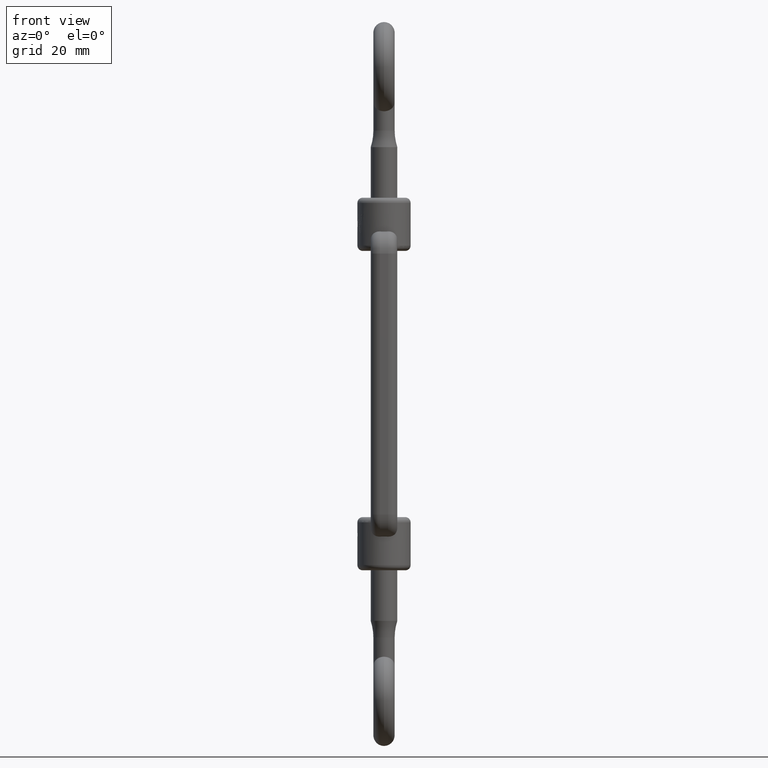
[diagram: clean part render]
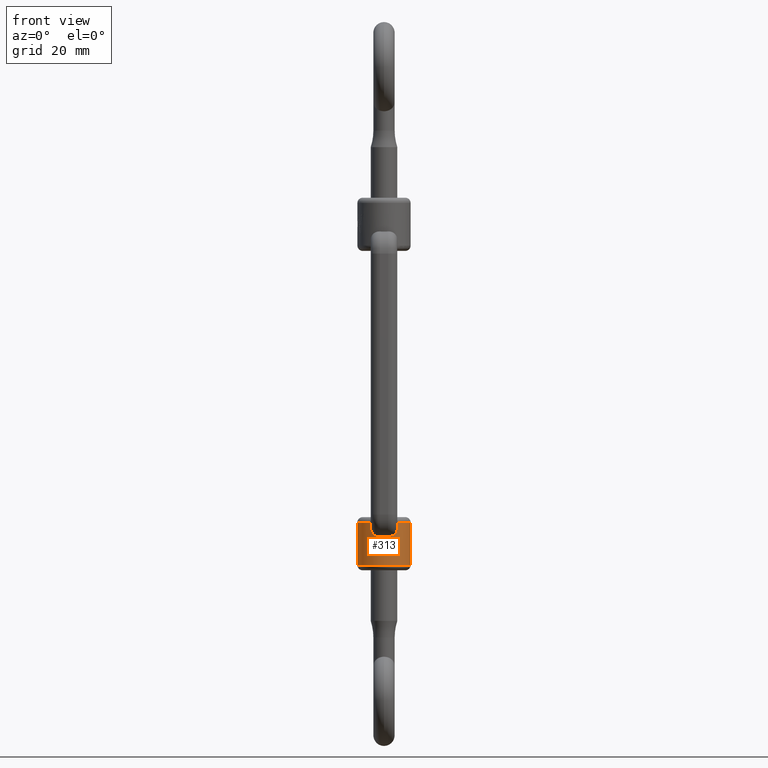
[diagram: same view with one face highlighted and labeled with its STEP entity id]
A machine part, front view. The second image highlights one B-rep face of the part: STEP entity #313.
In plain terms, the highlighted cylindrical surface (edge-blend (fillet) strip) has radius 5 mm, axis along (0, 0, 1).
Its self-contained STEP definition (entity closure, byte-faithful):
#96 = EDGE_CURVE ( 'NONE', #9236, #16144, #9448, .T. ) ;
#288 = ORIENTED_EDGE ( 'NONE', *, *, #17060, .F. ) ;
#313 = ADVANCED_FACE ( 'NONE', ( #4727 ), #1811, .T. ) ;
#316 = CARTESIAN_POINT ( 'NONE',  ( -5.000000000000018700, 6.596250719047437400E-016, -34.00000000000000000 ) ) ;
#379 = LINE ( 'NONE', #6190, #6431 ) ;
#566 = ORIENTED_EDGE ( 'NONE', *, *, #17601, .T. ) ;
#702 = CARTESIAN_POINT ( 'NONE',  ( -2.289481098313326200, -4.445028267679092000, -26.00000000000001100 ) ) ;
#733 = CARTESIAN_POINT ( 'NONE',  ( 0.7499999999999984500, -4.943429983321316000, -28.66920794535226600 ) ) ;
#873 = CIRCLE ( 'NONE', #10638, 5.000000000000017800 ) ;
#966 = CARTESIAN_POINT ( 'NONE',  ( 2.289481098319989400, -4.445028267675660100, -26.00000000001850600 ) ) ;
#1211 = CARTESIAN_POINT ( 'NONE',  ( 2.430748074337839300, -4.369533593644535000, -27.56406844131499400 ) ) ;
#1218 = CARTESIAN_POINT ( 'NONE',  ( 0.5014810327926195700, -4.981134416485010000, -28.65389332961219200 ) ) ;
#1484 = CIRCLE ( 'NONE', #9394, 5.000000000000018700 ) ;
#1811 = CYLINDRICAL_SURFACE ( 'NONE', #8727, 5.000000000000018700 ) ;
#1874 = ORIENTED_EDGE ( 'NONE', *, *, #3657, .T. ) ;
#1896 = ORIENTED_EDGE ( 'NONE', *, *, #5024, .T. ) ;
#1996 = CARTESIAN_POINT ( 'NONE',  ( -1.920616988522975600, -4.617954996606048500, -28.32330213461093400 ) ) ;
#2018 = DIRECTION ( 'NONE',  ( 0.0000000000000000000, 0.0000000000000000000, -1.000000000000000000 ) ) ;
#2102 = LINE ( 'NONE', #10293, #4802 ) ;
#2728 = DIRECTION ( 'NONE',  ( -0.0000000000000000000, -0.0000000000000000000, 1.000000000000000000 ) ) ;
#2958 = CARTESIAN_POINT ( 'NONE',  ( 2.289481098319989400, -4.445028267675660100, -26.00000000001850600 ) ) ;
#3112 = CARTESIAN_POINT ( 'NONE',  ( 0.0000000000000000000, 4.730167233106488900E-017, -28.62820512820512400 ) ) ;
#3202 = CARTESIAN_POINT ( 'NONE',  ( -5.000000000000018700, 6.596250719047437400E-016, -28.00000000000000400 ) ) ;
#3258 = CARTESIAN_POINT ( 'NONE',  ( 0.0000000000000000000, 4.730167233106488900E-017, -34.00000000000000000 ) ) ;
#3373 = DIRECTION ( 'NONE',  ( 1.000000000000000000, 0.0000000000000000000, 0.0000000000000000000 ) ) ;
#3454 = CARTESIAN_POINT ( 'NONE',  ( -4.999194630431611900, -0.08973877124143485300, -31.50000000000000000 ) ) ;
#3516 = VERTEX_POINT ( 'NONE', #2958 ) ;
#3592 = DIRECTION ( 'NONE',  ( -0.0000000000000000000, -0.0000000000000000000, 1.000000000000000000 ) ) ;
#3627 = CARTESIAN_POINT ( 'NONE',  ( -2.480811597676274800, -4.341190113866225000, -26.59919999189920900 ) ) ;
#3657 = EDGE_CURVE ( 'NONE', #13714, #7657, #7230, .T. ) ;
#3724 = DIRECTION ( 'NONE',  ( -0.9897086932041239100, -0.1430968294414150000, 0.0000000000000000000 ) ) ;
#3850 = EDGE_CURVE ( 'NONE', #11453, #3516, #16784, .T. ) ;
#4083 = EDGE_CURVE ( 'NONE', #18064, #6174, #13693, .T. ) ;
#4094 = CARTESIAN_POINT ( 'NONE',  ( 1.790885484525332100, -4.670480343673342600, -28.41607058282422200 ) ) ;
#4141 = CIRCLE ( 'NONE', #18165, 5.000000000000018700 ) ;
#4294 = AXIS2_PLACEMENT_3D ( 'NONE', #3258, #5950, #8959 ) ;
#4727 = FACE_OUTER_BOUND ( 'NONE', #10490, .T. ) ;
#4738 = DIRECTION ( 'NONE',  ( 0.0000000000000000000, 0.0000000000000000000, -1.000000000000000000 ) ) ;
#4755 = DIRECTION ( 'NONE',  ( 0.0000000000000000000, 0.0000000000000000000, 1.000000000000000000 ) ) ;
#4802 = VECTOR ( 'NONE', #12960, 1000.000000000000000 ) ;
#4864 = CARTESIAN_POINT ( 'NONE',  ( 0.0000000000000000000, 4.730167233106488900E-017, -26.00000000000000400 ) ) ;
#5006 = CARTESIAN_POINT ( 'NONE',  ( -2.495645709016416400, -4.332787632476041000, -27.24311862598024400 ) ) ;
#5024 = EDGE_CURVE ( 'NONE', #9236, #13222, #6956, .T. ) ;
#5064 = CARTESIAN_POINT ( 'NONE',  ( -2.379636091792333800, -4.398194760767514900, -27.70828295414997600 ) ) ;
#5097 = CARTESIAN_POINT ( 'NONE',  ( -4.999194630431611900, -0.08973877124143486700, -28.62820512820512400 ) ) ;
#5566 = CARTESIAN_POINT ( 'NONE',  ( 0.7499999999999984500, -4.943429983321316000, -28.66920794535226600 ) ) ;
#5722 = ORIENTED_EDGE ( 'NONE', *, *, #96, .F. ) ;
#5791 = VECTOR ( 'NONE', #6987, 1000.000000000000000 ) ;
#5950 = DIRECTION ( 'NONE',  ( -0.0000000000000000000, -0.0000000000000000000, 1.000000000000000000 ) ) ;
#6174 = VERTEX_POINT ( 'NONE', #14763 ) ;
#6190 = CARTESIAN_POINT ( 'NONE',  ( -4.948543466020638000, -0.7154841472070776500, -28.00000000000000400 ) ) ;
#6314 = DIRECTION ( 'NONE',  ( -1.000000000000000000, 0.0000000000000000000, 0.0000000000000000000 ) ) ;
#6340 = CARTESIAN_POINT ( 'NONE',  ( -0.9101627413635781100, -4.919130649371414400, -28.67907773866189600 ) ) ;
#6431 = VECTOR ( 'NONE', #2018, 1000.000000000000000 ) ;
#6512 = CARTESIAN_POINT ( 'NONE',  ( -2.139019059966386300, -4.520937450173619300, -28.10923773190318200 ) ) ;
#6803 = CARTESIAN_POINT ( 'NONE',  ( 1.066173458228137700, -4.887546965554382600, -28.66845321259099300 ) ) ;
#6810 = CARTESIAN_POINT ( 'NONE',  ( 0.0000000000000000000, 4.730167233106488900E-017, -26.00000000000000400 ) ) ;
#6840 = CARTESIAN_POINT ( 'NONE',  ( -4.948543466020638000, -0.7154841472070776500, -28.00000000000000400 ) ) ;
#6956 = CIRCLE ( 'NONE', #14411, 5.000000000000018700 ) ;
#6987 = DIRECTION ( 'NONE',  ( -0.0000000000000000000, -0.0000000000000000000, 1.000000000000000000 ) ) ;
#7230 = LINE ( 'NONE', #3454, #9468 ) ;
#7428 = DIRECTION ( 'NONE',  ( -0.0000000000000000000, -0.0000000000000000000, 1.000000000000000000 ) ) ;
#7513 = B_SPLINE_CURVE_WITH_KNOTS ( 'NONE', 3,
 ( #17029, #11258, #9631, #15656, #1218, #5566 ),
 .UNSPECIFIED., .F., .F.,
 ( 4, 2, 4 ),
 ( 0.03749955525111505600, 0.03824817375096631300, 0.03899679225081757000 ),
 .UNSPECIFIED. ) ;
#7657 = VERTEX_POINT ( 'NONE', #5097 ) ;
#7895 = CARTESIAN_POINT ( 'NONE',  ( -1.793945514977382200, -4.669315782863914200, -28.41415432432327000 ) ) ;
#7932 = DIRECTION ( 'NONE',  ( -0.0000000000000000000, -0.0000000000000000000, 1.000000000000000000 ) ) ;
#8055 = CARTESIAN_POINT ( 'NONE',  ( -0.7499999999999984500, -4.943429983321316000, -28.66920794535226600 ) ) ;
#8205 = DIRECTION ( 'NONE',  ( -0.9897086932041239100, -0.1430968294414150000, 0.0000000000000000000 ) ) ;
#8296 = EDGE_CURVE ( 'NONE', #18064, #17227, #14293, .T. ) ;
#8372 = CARTESIAN_POINT ( 'NONE',  ( 0.9098819461953311400, -4.919173250637517600, -28.67906043507274900 ) ) ;
#8661 = ORIENTED_EDGE ( 'NONE', *, *, #3850, .F. ) ;
#8727 = AXIS2_PLACEMENT_3D ( 'NONE', #16384, #3592, #3373 ) ;
#8767 = VECTOR ( 'NONE', #2728, 1000.000000000000000 ) ;
#8908 = ORIENTED_EDGE ( 'NONE', *, *, #15838, .F. ) ;
#8959 = DIRECTION ( 'NONE',  ( 1.000000000000000000, 0.0000000000000000000, 0.0000000000000000000 ) ) ;
#9023 = EDGE_CURVE ( 'NONE', #12957, #11453, #7513, .T. ) ;
#9028 = EDGE_CURVE ( 'NONE', #13084, #3516, #1484, .T. ) ;
#9236 = VERTEX_POINT ( 'NONE', #3202 ) ;
#9394 = AXIS2_PLACEMENT_3D ( 'NONE', #6810, #16842, #16774 ) ;
#9448 = LINE ( 'NONE', #14452, #8767 ) ;
#9468 = VECTOR ( 'NONE', #4755, 1000.000000000000000 ) ;
#9625 = CARTESIAN_POINT ( 'NONE',  ( 2.482270838802237200, -4.340350671650172700, -26.60545416828512400 ) ) ;
#9631 = CARTESIAN_POINT ( 'NONE',  ( -0.2540504943471262900, -4.999820779523362000, -28.64585663968986400 ) ) ;
#9820 = CARTESIAN_POINT ( 'NONE',  ( 1.917677539172338900, -4.619168442963292900, -28.32554445573940100 ) ) ;
#10293 = CARTESIAN_POINT ( 'NONE',  ( 5.000000000000018700, 4.730167233106488900E-017, 25.00000000000000000 ) ) ;
#10490 = EDGE_LOOP ( 'NONE', ( #14720, #15961, #18432, #12502, #8661, #10846, #288, #15479, #5722, #1896, #566, #13853, #1874, #8908 ) ) ;
#10536 = CARTESIAN_POINT ( 'NONE',  ( -4.999194630431611900, -0.08973877124143485300, -31.50000000000000000 ) ) ;
#10558 = CARTESIAN_POINT ( 'NONE',  ( -1.373415937675257500, -4.810249350732488200, -28.60650508250060800 ) ) ;
#10638 = AXIS2_PLACEMENT_3D ( 'NONE', #3112, #7428, #13254 ) ;
#10663 = CARTESIAN_POINT ( 'NONE',  ( -4.948543466020638000, -0.7154841472070776500, -31.50000000000000000 ) ) ;
#10846 = ORIENTED_EDGE ( 'NONE', *, *, #9023, .F. ) ;
#10956 = DIRECTION ( 'NONE',  ( -0.0000000000000000000, -0.0000000000000000000, 1.000000000000000000 ) ) ;
#11258 = CARTESIAN_POINT ( 'NONE',  ( -0.5028538810835495600, -4.980926132718137100, -28.65397792936842300 ) ) ;
#11453 = VERTEX_POINT ( 'NONE', #18200 ) ;
#11764 = EDGE_CURVE ( 'NONE', #6174, #13084, #2102, .T. ) ;
#11975 = CARTESIAN_POINT ( 'NONE',  ( -2.505392440031328800, -4.327019547958209400, -27.08082140526005700 ) ) ;
#12046 = CARTESIAN_POINT ( 'NONE',  ( -2.289481098313326200, -4.445028267679092000, -26.00000000000001100 ) ) ;
#12251 = VERTEX_POINT ( 'NONE', #10663 ) ;
#12502 = ORIENTED_EDGE ( 'NONE', *, *, #9028, .T. ) ;
#12614 = CARTESIAN_POINT ( 'NONE',  ( 2.230116650190562000, -4.475874942316474800, -27.98815101700087400 ) ) ;
#12957 = VERTEX_POINT ( 'NONE', #8055 ) ;
#12960 = DIRECTION ( 'NONE',  ( -0.0000000000000000000, -0.0000000000000000000, 1.000000000000000000 ) ) ;
#13084 = VERTEX_POINT ( 'NONE', #15118 ) ;
#13222 = VERTEX_POINT ( 'NONE', #6840 ) ;
#13254 = DIRECTION ( 'NONE',  ( -0.9998389260863188600, -0.01794775424828691900, 0.0000000000000000000 ) ) ;
#13262 = AXIS2_PLACEMENT_3D ( 'NONE', #13811, #7932, #3724 ) ;
#13646 = CARTESIAN_POINT ( 'NONE',  ( -2.432993866529964400, -4.368276206754440900, -27.55640571935244800 ) ) ;
#13693 = CIRCLE ( 'NONE', #4294, 5.000000000000018700 ) ;
#13714 = VERTEX_POINT ( 'NONE', #10536 ) ;
#13776 = EDGE_CURVE ( 'NONE', #13714, #12251, #14473, .T. ) ;
#13811 = CARTESIAN_POINT ( 'NONE',  ( 0.0000000000000000000, 4.730167233106488900E-017, -31.50000000000000000 ) ) ;
#13853 = ORIENTED_EDGE ( 'NONE', *, *, #13776, .F. ) ;
#14004 = CARTESIAN_POINT ( 'NONE',  ( 2.494936923622254300, -4.333203177100230600, -27.25006801879239400 ) ) ;
#14128 = CARTESIAN_POINT ( 'NONE',  ( 2.505241096405649100, -4.327105864939740700, -27.08943584033041000 ) ) ;
#14293 = LINE ( 'NONE', #18253, #5791 ) ;
#14411 = AXIS2_PLACEMENT_3D ( 'NONE', #15169, #10956, #8205 ) ;
#14452 = CARTESIAN_POINT ( 'NONE',  ( -5.000000000000018700, 6.596250719047437400E-016, 25.00000000000000000 ) ) ;
#14473 = CIRCLE ( 'NONE', #13262, 5.000000000000018700 ) ;
#14720 = ORIENTED_EDGE ( 'NONE', *, *, #8296, .F. ) ;
#14763 = CARTESIAN_POINT ( 'NONE',  ( 5.000000000000018700, 4.730167233106488900E-017, -34.00000000000000000 ) ) ;
#14873 = CARTESIAN_POINT ( 'NONE',  ( -0.7499999999999984500, -4.943429983321316000, -28.66920794535226600 ) ) ;
#14932 = CARTESIAN_POINT ( 'NONE',  ( -1.522147206561106400, -4.764852387258992300, -28.55478490014213800 ) ) ;
#15044 = CARTESIAN_POINT ( 'NONE',  ( -1.068171651813775800, -4.887103383021909100, -28.66821400645471800 ) ) ;
#15053 = VERTEX_POINT ( 'NONE', #702 ) ;
#15118 = CARTESIAN_POINT ( 'NONE',  ( 5.000000000000018700, 4.730167233106488900E-017, -26.00000000000000400 ) ) ;
#15169 = CARTESIAN_POINT ( 'NONE',  ( 0.0000000000000000000, 4.730167233106488900E-017, -28.00000000000000400 ) ) ;
#15336 = CARTESIAN_POINT ( 'NONE',  ( 2.397032112436333000, -4.389632441350967100, -26.29852285201870300 ) ) ;
#15479 = ORIENTED_EDGE ( 'NONE', *, *, #18386, .T. ) ;
#15516 = CARTESIAN_POINT ( 'NONE',  ( 1.519640293969836600, -4.765642751640734300, -28.55574211271204600 ) ) ;
#15656 = CARTESIAN_POINT ( 'NONE',  ( 0.2469463094835088200, -5.000176697004226500, -28.64570640139598400 ) ) ;
#15838 = EDGE_CURVE ( 'NONE', #17227, #7657, #873, .T. ) ;
#15961 = ORIENTED_EDGE ( 'NONE', *, *, #4083, .T. ) ;
#16144 = VERTEX_POINT ( 'NONE', #18023 ) ;
#16384 = CARTESIAN_POINT ( 'NONE',  ( 0.0000000000000000000, 4.730167233106488900E-017, 25.00000000000000000 ) ) ;
#16424 = CARTESIAN_POINT ( 'NONE',  ( -2.233469516915354000, -4.474192552853909700, -27.98316289257686400 ) ) ;
#16539 = CARTESIAN_POINT ( 'NONE',  ( -2.396436689558285600, -4.389939123186281700, -26.29687017270161700 ) ) ;
#16553 = B_SPLINE_CURVE_WITH_KNOTS ( 'NONE', 3,
 ( #12046, #16539, #3627, #11975, #5006, #13646, #5064, #16424, #6512, #1996, #7895, #14932, #10558, #15044, #6340, #14873 ),
 .UNSPECIFIED., .F., .F.,
 ( 4, 2, 2, 2, 2, 2, 2, 4 ),
 ( 2.133531036649570400E-007, 0.0009502819696181940900, 0.001425316277875463600, 0.001900350586132733400, 0.002375384894390002900, 0.002850419202647271700, 0.003325453510904541200, 0.003800487819161810800 ),
 .UNSPECIFIED. ) ;
#16658 = CARTESIAN_POINT ( 'NONE',  ( -5.000000000000018700, 6.596250719047437400E-016, -28.62820512820512400 ) ) ;
#16774 = DIRECTION ( 'NONE',  ( -1.000000000000000000, 0.0000000000000000000, 0.0000000000000000000 ) ) ;
#16784 = B_SPLINE_CURVE_WITH_KNOTS ( 'NONE', 3,
 ( #733, #8372, #6803, #18315, #15516, #4094, #9820, #18128, #12614, #18372, #1211, #14004, #14128, #9625, #15336, #966 ),
 .UNSPECIFIED., .F., .F.,
 ( 4, 2, 2, 2, 2, 2, 2, 4 ),
 ( 1.998105977672955000E-007, 0.0004793959639572380100, 0.0009585921173167087300, 0.001437788270676179600, 0.001916984424035650200, 0.002396180577395121200, 0.002875376730754592100, 0.003833769037473543700 ),
 .UNSPECIFIED. ) ;
#16842 = DIRECTION ( 'NONE',  ( 0.0000000000000000000, 0.0000000000000000000, -1.000000000000000000 ) ) ;
#17029 = CARTESIAN_POINT ( 'NONE',  ( -0.7499999999999984500, -4.943429983321316000, -28.66920794535226600 ) ) ;
#17060 = EDGE_CURVE ( 'NONE', #15053, #12957, #16553, .T. ) ;
#17227 = VERTEX_POINT ( 'NONE', #16658 ) ;
#17601 = EDGE_CURVE ( 'NONE', #13222, #12251, #379, .T. ) ;
#18023 = CARTESIAN_POINT ( 'NONE',  ( -5.000000000000018700, 6.596250719047437400E-016, -26.00000000000000400 ) ) ;
#18064 = VERTEX_POINT ( 'NONE', #316 ) ;
#18128 = CARTESIAN_POINT ( 'NONE',  ( 2.135582513638214100, -4.522553656526001800, -28.11322632577075700 ) ) ;
#18165 = AXIS2_PLACEMENT_3D ( 'NONE', #4864, #4738, #6314 ) ;
#18200 = CARTESIAN_POINT ( 'NONE',  ( 0.7499999999999984500, -4.943429983321316000, -28.66920794535226600 ) ) ;
#18253 = CARTESIAN_POINT ( 'NONE',  ( -5.000000000000018700, 6.596250719047437400E-016, 25.00000000000000000 ) ) ;
#18315 = CARTESIAN_POINT ( 'NONE',  ( 1.371883084147461600, -4.810694127354185700, -28.60697782907063300 ) ) ;
#18372 = CARTESIAN_POINT ( 'NONE',  ( 2.377316394684311000, -4.399459459101637800, -27.71391264404867300 ) ) ;
#18386 = EDGE_CURVE ( 'NONE', #15053, #16144, #4141, .T. ) ;
#18432 = ORIENTED_EDGE ( 'NONE', *, *, #11764, .T. ) ;